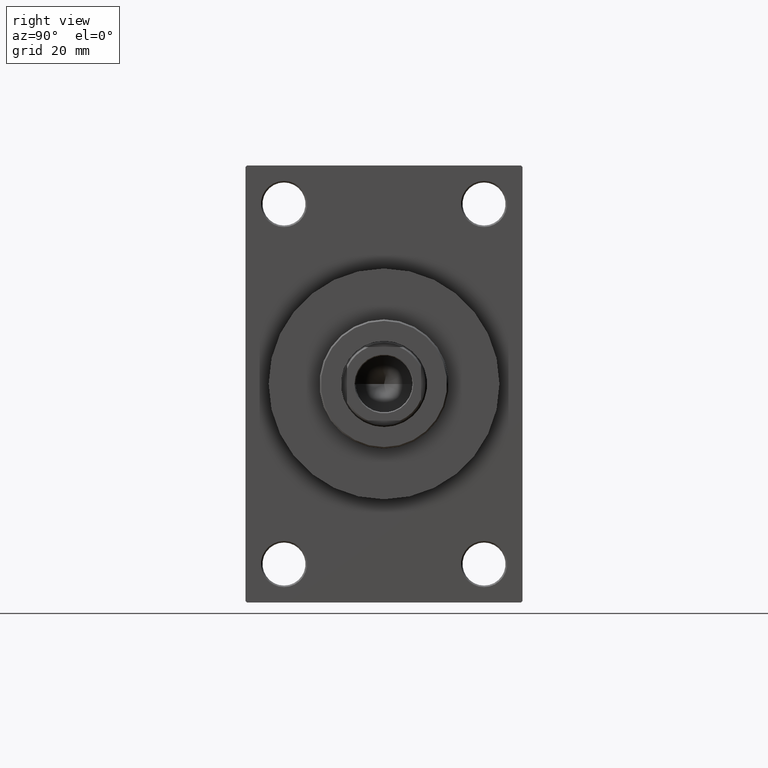
[diagram: clean part render]
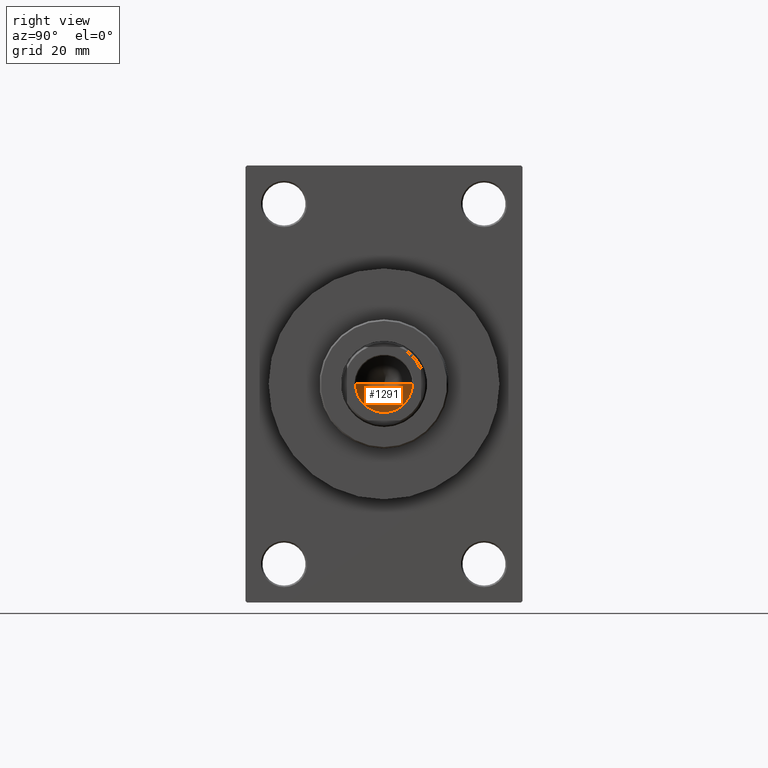
[diagram: same view with one face highlighted and labeled with its STEP entity id]
A machine part, right view. The second image highlights one B-rep face of the part: STEP entity #1291.
In plain terms, the highlighted conical surface has half-angle 59 deg.
Its self-contained STEP definition (entity closure, byte-faithful):
#358 = EDGE_CURVE ( 'NONE', #12349, #43144, #37601, .T. ) ;
#457 = EDGE_CURVE ( 'NONE', #33433, #43144, #15095, .T. ) ;
#1291 = ADVANCED_FACE ( 'NONE', ( #44707 ), #26989, .F. ) ;
#1813 = CARTESIAN_POINT ( 'NONE',  ( 9.249999999999992895, 0.000000000000000000, 77.99999999999998579 ) ) ;
#2795 = CARTESIAN_POINT ( 'NONE',  ( -9.249999999999992895, 1.132798289211300712E-15, 77.99999999999998579 ) ) ;
#6012 = ORIENTED_EDGE ( 'NONE', *, *, #358, .T. ) ;
#7137 = VECTOR ( 'NONE', #10801, 1000.000000000000000 ) ;
#8221 = DIRECTION ( 'NONE',  ( 0.8571673007021117785, 0.000000000000000000, 0.5150380749100550437 ) ) ;
#8674 = AXIS2_PLACEMENT_3D ( 'NONE', #13917, #43030, #13212 ) ;
#10801 = DIRECTION ( 'NONE',  ( -0.8571673007021117785, 1.049727191138617956E-16, 0.5150380749100550437 ) ) ;
#12349 = VERTEX_POINT ( 'NONE', #1813 ) ;
#13212 = DIRECTION ( 'NONE',  ( 1.000000000000000000, 0.000000000000000000, 0.000000000000000000 ) ) ;
#13917 = CARTESIAN_POINT ( 'NONE',  ( 0.000000000000000000, 0.000000000000000000, 77.99999999999998579 ) ) ;
#14753 = EDGE_LOOP ( 'NONE', ( #28380, #24463, #6012 ) ) ;
#15095 = LINE ( 'NONE', #29649, #7137 ) ;
#17318 = EDGE_CURVE ( 'NONE', #33433, #12349, #33532, .T. ) ;
#21061 = DIRECTION ( 'NONE',  ( -0.000000000000000000, -0.000000000000000000, 1.000000000000000000 ) ) ;
#24463 = ORIENTED_EDGE ( 'NONE', *, *, #17318, .T. ) ;
#26989 = CONICAL_SURFACE ( 'NONE', #41455, 9.249999999999992895, 1.029744258676653423 ) ;
#28380 = ORIENTED_EDGE ( 'NONE', *, *, #457, .F. ) ;
#29649 = CARTESIAN_POINT ( 'NONE',  ( -9.249999999999992895, 1.132798289211300712E-15, 77.99999999999998579 ) ) ;
#29652 = VECTOR ( 'NONE', #8221, 1000.000000000000000 ) ;
#30850 = CARTESIAN_POINT ( 'NONE',  ( -9.769621978240258809E-15, 0.000000000000000000, 72.44203927399505005 ) ) ;
#33433 = VERTEX_POINT ( 'NONE', #30850 ) ;
#33532 = LINE ( 'NONE', #40924, #29652 ) ;
#37601 = CIRCLE ( 'NONE', #8674, 9.249999999999992895 ) ;
#38484 = DIRECTION ( 'NONE',  ( 1.000000000000000000, 0.000000000000000000, 0.000000000000000000 ) ) ;
#39185 = CARTESIAN_POINT ( 'NONE',  ( 0.000000000000000000, 0.000000000000000000, 77.99999999999998579 ) ) ;
#40924 = CARTESIAN_POINT ( 'NONE',  ( 9.249999999999992895, 0.000000000000000000, 77.99999999999998579 ) ) ;
#41455 = AXIS2_PLACEMENT_3D ( 'NONE', #39185, #21061, #38484 ) ;
#43030 = DIRECTION ( 'NONE',  ( -0.000000000000000000, -0.000000000000000000, 1.000000000000000000 ) ) ;
#43144 = VERTEX_POINT ( 'NONE', #2795 ) ;
#44707 = FACE_OUTER_BOUND ( 'NONE', #14753, .T. ) ;